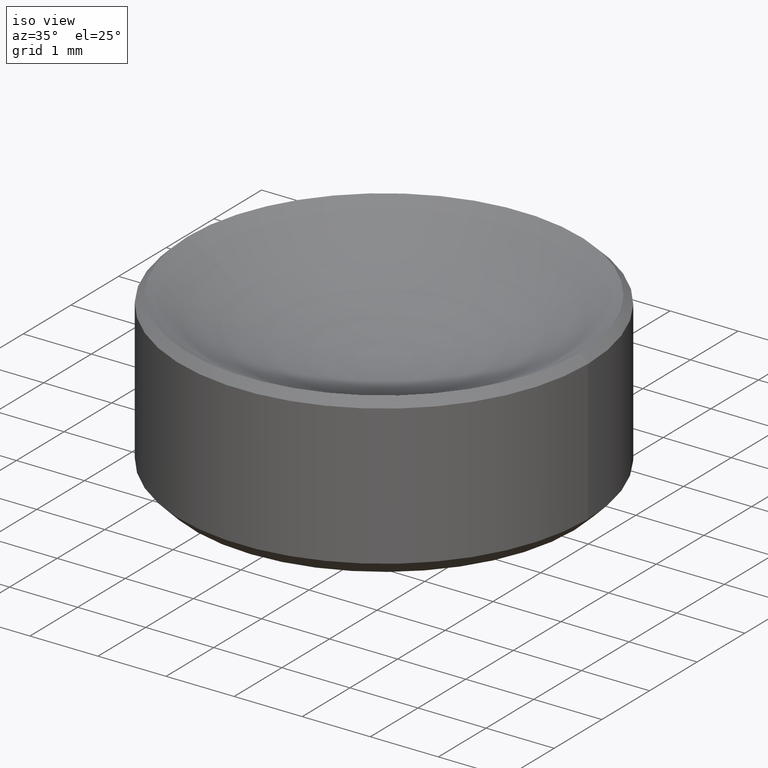
[diagram: clean part render]
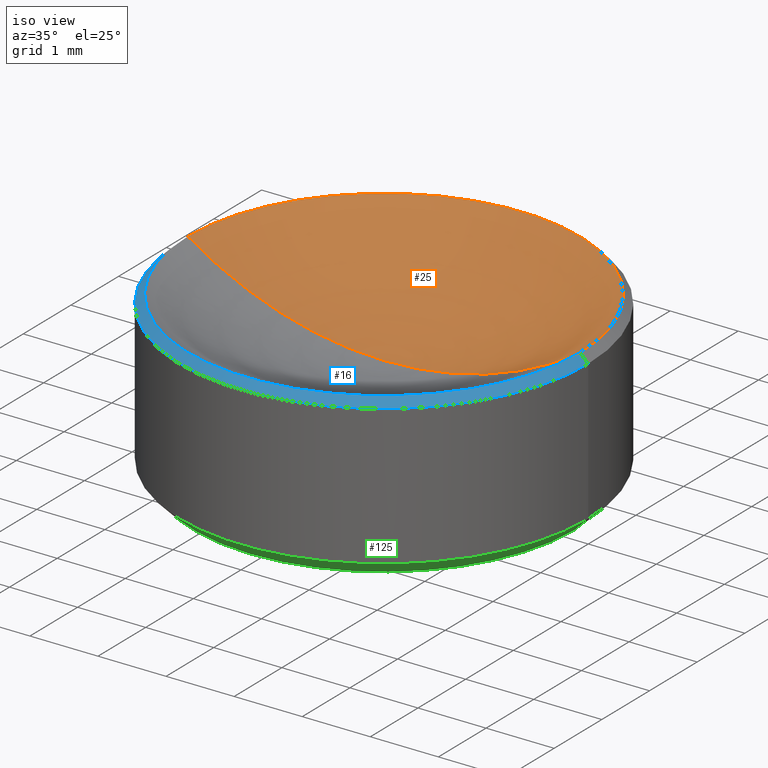
[diagram: same view with three faces highlighted in distinct colors, each labeled with its STEP entity id]
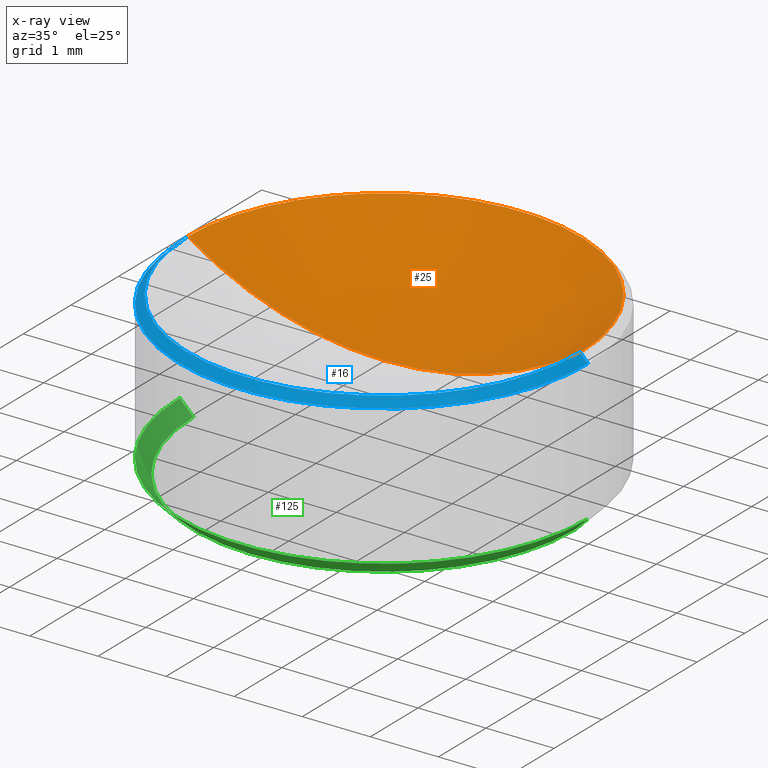
[diagram: x-ray of the same camera — body ghosted, the three highlighted faces saturated]
A machine part, iso view with three faces highlighted in distinct colors.
The next image is the same camera in x-ray (body ghosted, the three faces saturated) — at least one of them is partly hidden behind the body in this view.
Their STEP definitions:

[orange] entity #25 — the highlighted toroidal blend (fillet) surface has major radius 0.0008 mm and minor (blend) radius 5.17 mm.
#4 = AXIS2_PLACEMENT_3D ( 'NONE', #193, #9, #162 ) ;
#5 = DIRECTION ( 'NONE',  ( -1.000000000000000000, 1.224646799147353207E-16, 0.000000000000000000 ) ) ;
#9 = DIRECTION ( 'NONE',  ( -0.000000000000000000, -0.000000000000000000, 1.000000000000000000 ) ) ;
#23 = CIRCLE ( 'NONE', #160, 5.169999999999999929 ) ;
#24 = ORIENTED_EDGE ( 'NONE', *, *, #108, .T. ) ;
#25 = ADVANCED_FACE ( 'NONE', ( #212 ), #90, .F. ) ;
#39 = DIRECTION ( 'NONE',  ( -0.000000000000000000, -0.000000000000000000, 1.000000000000000000 ) ) ;
#74 = CARTESIAN_POINT ( 'NONE',  ( 2.881797954214630142, 0.000000000000000000, 2.378202045785374974 ) ) ;
#76 = CIRCLE ( 'NONE', #245, 2.881797954214628810 ) ;
#86 = VERTEX_POINT ( 'NONE', #229 ) ;
#90 = TOROIDAL_SURFACE ( 'NONE', #4, -0.0007999801944051383035, 5.169999999999999929 ) ;
#98 = VERTEX_POINT ( 'NONE', #219 ) ;
#100 = CARTESIAN_POINT ( 'NONE',  ( 0.000000000000000000, 0.000000000000000000, 2.378202045785374974 ) ) ;
#108 = EDGE_CURVE ( 'NONE', #124, #98, #76, .T. ) ;
#115 = CARTESIAN_POINT ( 'NONE',  ( 0.0007999801944051383035, -9.796931844595300665E-20, 6.669999938107513238 ) ) ;
#118 = DIRECTION ( 'NONE',  ( 0.000000000000000000, 0.000000000000000000, -1.000000000000000000 ) ) ;
#124 = VERTEX_POINT ( 'NONE', #74 ) ;
#152 = DIRECTION ( 'NONE',  ( 1.224646799147353207E-16, 1.000000000000000000, 0.000000000000000000 ) ) ;
#156 = DIRECTION ( 'NONE',  ( 1.000000000000000000, 0.000000000000000000, 0.000000000000000000 ) ) ;
#160 = AXIS2_PLACEMENT_3D ( 'NONE', #115, #152, #5 ) ;
#161 = AXIS2_PLACEMENT_3D ( 'NONE', #256, #195, #118 ) ;
#162 = DIRECTION ( 'NONE',  ( 1.000000000000000000, 0.000000000000000000, 0.000000000000000000 ) ) ;
#193 = CARTESIAN_POINT ( 'NONE',  ( 0.000000000000000000, 0.000000000000000000, 6.669999938107513238 ) ) ;
#195 = DIRECTION ( 'NONE',  ( 0.000000000000000000, -1.000000000000000000, 0.000000000000000000 ) ) ;
#196 = EDGE_CURVE ( 'NONE', #86, #98, #23, .T. ) ;
#203 = CIRCLE ( 'NONE', #161, 5.169999999999999929 ) ;
#208 = EDGE_CURVE ( 'NONE', #86, #124, #203, .T. ) ;
#212 = FACE_OUTER_BOUND ( 'NONE', #233, .T. ) ;
#219 = CARTESIAN_POINT ( 'NONE',  ( -2.881797954214630142, 3.529184640418337712E-16, 2.378202045785374974 ) ) ;
#226 = ORIENTED_EDGE ( 'NONE', *, *, #196, .F. ) ;
#228 = ORIENTED_EDGE ( 'NONE', *, *, #208, .T. ) ;
#229 = CARTESIAN_POINT ( 'NONE',  ( 0.000000000000000000, 0.000000000000000000, 1.500000000000000000 ) ) ;
#233 = EDGE_LOOP ( 'NONE', ( #226, #228, #24 ) ) ;
#245 = AXIS2_PLACEMENT_3D ( 'NONE', #100, #39, #156 ) ;
#256 = CARTESIAN_POINT ( 'NONE',  ( -0.0007999801944051383035, 0.000000000000000000, 6.669999938107513238 ) ) ;

[blue] entity #16 — the highlighted conical surface has half-angle 45 deg.
#16 = ADVANCED_FACE ( 'NONE', ( #27 ), #179, .T. ) ;
#27 = FACE_OUTER_BOUND ( 'NONE', #64, .T. ) ;
#28 = DIRECTION ( 'NONE',  ( -1.000000000000000000, 0.000000000000000000, 0.000000000000000000 ) ) ;
#30 = CARTESIAN_POINT ( 'NONE',  ( -3.000000000000000000, 3.673940397442059868E-16, 2.260000000000000675 ) ) ;
#33 = VERTEX_POINT ( 'NONE', #30 ) ;
#34 = AXIS2_PLACEMENT_3D ( 'NONE', #190, #41, #57 ) ;
#37 = ORIENTED_EDGE ( 'NONE', *, *, #121, .T. ) ;
#41 = DIRECTION ( 'NONE',  ( 0.000000000000000000, 0.000000000000000000, -1.000000000000000000 ) ) ;
#42 = AXIS2_PLACEMENT_3D ( 'NONE', #188, #133, #28 ) ;
#55 = CARTESIAN_POINT ( 'NONE',  ( 0.000000000000000000, 0.000000000000000000, 2.378202045785374974 ) ) ;
#57 = DIRECTION ( 'NONE',  ( -1.000000000000000000, 0.000000000000000000, 0.000000000000000000 ) ) ;
#59 = EDGE_CURVE ( 'NONE', #124, #61, #243, .T. ) ;
#61 = VERTEX_POINT ( 'NONE', #172 ) ;
#64 = EDGE_LOOP ( 'NONE', ( #222, #209, #37, #85 ) ) ;
#74 = CARTESIAN_POINT ( 'NONE',  ( 2.881797954214630142, 0.000000000000000000, 2.378202045785374974 ) ) ;
#78 = EDGE_CURVE ( 'NONE', #98, #124, #151, .T. ) ;
#80 = AXIS2_PLACEMENT_3D ( 'NONE', #55, #241, #258 ) ;
#85 = ORIENTED_EDGE ( 'NONE', *, *, #252, .F. ) ;
#95 = DIRECTION ( 'NONE',  ( 0.7071067811865450192, 8.659560562354900811E-17, -0.7071067811865500152 ) ) ;
#98 = VERTEX_POINT ( 'NONE', #219 ) ;
#103 = VECTOR ( 'NONE', #260, 1000.000000000000000 ) ;
#119 = LINE ( 'NONE', #175, #103 ) ;
#120 = CARTESIAN_POINT ( 'NONE',  ( 2.881797954214629254, 3.529184640418335740E-16, 2.378202045785372309 ) ) ;
#121 = EDGE_CURVE ( 'NONE', #98, #33, #119, .T. ) ;
#124 = VERTEX_POINT ( 'NONE', #74 ) ;
#133 = DIRECTION ( 'NONE',  ( 0.000000000000000000, 0.000000000000000000, -1.000000000000000000 ) ) ;
#151 = CIRCLE ( 'NONE', #80, 2.881797954214628810 ) ;
#172 = CARTESIAN_POINT ( 'NONE',  ( 3.000000000000000000, 0.000000000000000000, 2.260000000000000675 ) ) ;
#175 = CARTESIAN_POINT ( 'NONE',  ( -2.881797954214629254, 0.000000000000000000, 2.378202045785372309 ) ) ;
#179 = CONICAL_SURFACE ( 'NONE', #42, 2.881797954214629254, 0.7853981633974447263 ) ;
#188 = CARTESIAN_POINT ( 'NONE',  ( 0.000000000000000000, 0.000000000000000000, 2.378202045785372309 ) ) ;
#190 = CARTESIAN_POINT ( 'NONE',  ( 0.000000000000000000, 0.000000000000000000, 2.260000000000000675 ) ) ;
#209 = ORIENTED_EDGE ( 'NONE', *, *, #78, .F. ) ;
#219 = CARTESIAN_POINT ( 'NONE',  ( -2.881797954214630142, 3.529184640418337712E-16, 2.378202045785374974 ) ) ;
#220 = VECTOR ( 'NONE', #95, 1000.000000000000000 ) ;
#222 = ORIENTED_EDGE ( 'NONE', *, *, #59, .F. ) ;
#241 = DIRECTION ( 'NONE',  ( -0.000000000000000000, -0.000000000000000000, 1.000000000000000000 ) ) ;
#243 = LINE ( 'NONE', #120, #220 ) ;
#252 = EDGE_CURVE ( 'NONE', #61, #33, #266, .T. ) ;
#258 = DIRECTION ( 'NONE',  ( 1.000000000000000000, 0.000000000000000000, 0.000000000000000000 ) ) ;
#260 = DIRECTION ( 'NONE',  ( -0.7071067811865450192, 0.000000000000000000, -0.7071067811865500152 ) ) ;
#266 = CIRCLE ( 'NONE', #34, 3.000000000000000000 ) ;

[green] entity #125 — the highlighted conical surface has half-angle 45 deg.
#1 = CIRCLE ( 'NONE', #142, 3.000000000000000000 ) ;
#7 = DIRECTION ( 'NONE',  ( 1.000000000000000000, 0.000000000000000000, 0.000000000000000000 ) ) ;
#18 = CARTESIAN_POINT ( 'NONE',  ( 3.000000000000000000, 0.000000000000000000, 0.2000000000000016209 ) ) ;
#29 = CARTESIAN_POINT ( 'NONE',  ( -3.000000000000000000, 3.673940397442059868E-16, 0.2000000000000016209 ) ) ;
#35 = CARTESIAN_POINT ( 'NONE',  ( -2.799999999999997158, 3.551475717527322846E-16, 1.836970198721029934E-16 ) ) ;
#36 = CARTESIAN_POINT ( 'NONE',  ( 3.000000000000000000, 0.000000000000000000, 0.2000000000000016209 ) ) ;
#44 = EDGE_CURVE ( 'NONE', #185, #105, #176, .T. ) ;
#48 = CIRCLE ( 'NONE', #104, 2.799999999999997158 ) ;
#49 = EDGE_LOOP ( 'NONE', ( #112, #223, #206, #184 ) ) ;
#50 = DIRECTION ( 'NONE',  ( 0.000000000000000000, 0.000000000000000000, -1.000000000000000000 ) ) ;
#87 = CARTESIAN_POINT ( 'NONE',  ( 0.000000000000000000, 0.000000000000000000, 0.2000000000000016209 ) ) ;
#89 = FACE_OUTER_BOUND ( 'NONE', #49, .T. ) ;
#104 = AXIS2_PLACEMENT_3D ( 'NONE', #154, #50, #136 ) ;
#105 = VERTEX_POINT ( 'NONE', #18 ) ;
#111 = VERTEX_POINT ( 'NONE', #35 ) ;
#112 = ORIENTED_EDGE ( 'NONE', *, *, #145, .F. ) ;
#125 = ADVANCED_FACE ( 'NONE', ( #89 ), #239, .T. ) ;
#129 = VECTOR ( 'NONE', #130, 1000.000000000000000 ) ;
#130 = DIRECTION ( 'NONE',  ( -0.7071067811865497932, 8.659560562354961208E-17, 0.7071067811865452413 ) ) ;
#136 = DIRECTION ( 'NONE',  ( 1.000000000000000000, 0.000000000000000000, 0.000000000000000000 ) ) ;
#139 = VECTOR ( 'NONE', #263, 1000.000000000000000 ) ;
#142 = AXIS2_PLACEMENT_3D ( 'NONE', #87, #192, #231 ) ;
#144 = EDGE_CURVE ( 'NONE', #227, #105, #1, .T. ) ;
#145 = EDGE_CURVE ( 'NONE', #111, #227, #257, .T. ) ;
#146 = CARTESIAN_POINT ( 'NONE',  ( 2.799999999999997158, 0.000000000000000000, 1.836970198721029934E-16 ) ) ;
#154 = CARTESIAN_POINT ( 'NONE',  ( 0.000000000000000000, 0.000000000000000000, 1.836970198721029934E-16 ) ) ;
#171 = CARTESIAN_POINT ( 'NONE',  ( 0.000000000000000000, 0.000000000000000000, 0.2000000000000016209 ) ) ;
#176 = LINE ( 'NONE', #36, #139 ) ;
#181 = EDGE_CURVE ( 'NONE', #185, #111, #48, .T. ) ;
#184 = ORIENTED_EDGE ( 'NONE', *, *, #144, .F. ) ;
#185 = VERTEX_POINT ( 'NONE', #146 ) ;
#192 = DIRECTION ( 'NONE',  ( -0.000000000000000000, -0.000000000000000000, 1.000000000000000000 ) ) ;
#205 = CARTESIAN_POINT ( 'NONE',  ( -3.000000000000000000, 3.673940397442059868E-16, 0.2000000000000016209 ) ) ;
#206 = ORIENTED_EDGE ( 'NONE', *, *, #44, .T. ) ;
#223 = ORIENTED_EDGE ( 'NONE', *, *, #181, .F. ) ;
#227 = VERTEX_POINT ( 'NONE', #205 ) ;
#231 = DIRECTION ( 'NONE',  ( 1.000000000000000000, 0.000000000000000000, 0.000000000000000000 ) ) ;
#234 = AXIS2_PLACEMENT_3D ( 'NONE', #171, #237, #7 ) ;
#237 = DIRECTION ( 'NONE',  ( -0.000000000000000000, -0.000000000000000000, 1.000000000000000000 ) ) ;
#239 = CONICAL_SURFACE ( 'NONE', #234, 3.000000000000000000, 0.7853981633974514986 ) ;
#257 = LINE ( 'NONE', #29, #129 ) ;
#263 = DIRECTION ( 'NONE',  ( 0.7071067811865497932, 0.000000000000000000, 0.7071067811865452413 ) ) ;